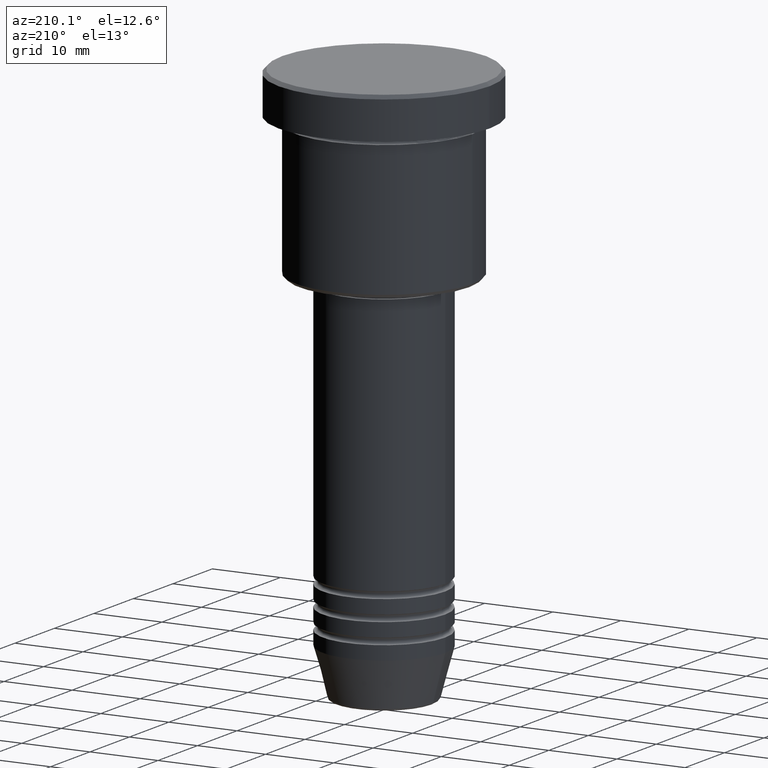
[diagram: clean part render]
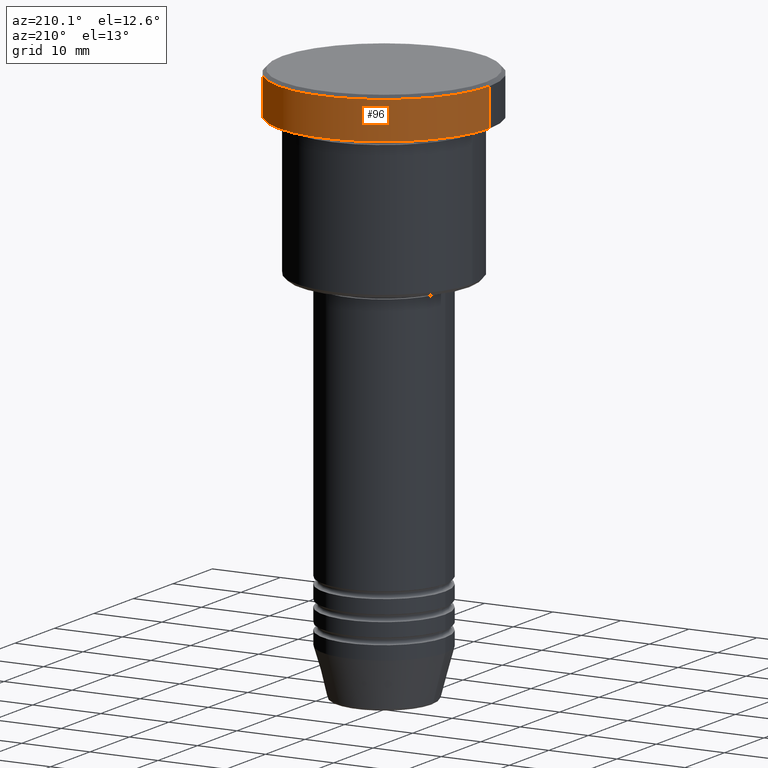
[diagram: same view with one face highlighted and labeled with its STEP entity id]
A machine part, auxiliary view. The second image highlights one B-rep face of the part: STEP entity #96.
In plain terms, the highlighted cylindrical surface (partial cylindrical patch) has radius 15.5 mm, axis along (-0, -0, 1).
Its self-contained STEP definition (entity closure, byte-faithful):
#4 = EDGE_CURVE ( 'NONE', #941, #603, #370, .T. ) ;
#20 = VECTOR ( 'NONE', #90, 1000.000000000000000 ) ;
#21 = DIRECTION ( 'NONE',  ( -0.000000000000000000, -0.000000000000000000, 1.000000000000000000 ) ) ;
#76 = CARTESIAN_POINT ( 'NONE',  ( 15.50000000000000000, 0.000000000000000000, -5.999999999999995559 ) ) ;
#79 = EDGE_CURVE ( 'NONE', #330, #225, #942, .T. ) ;
#90 = DIRECTION ( 'NONE',  ( -0.000000000000000000, -0.000000000000000000, 1.000000000000000000 ) ) ;
#96 = ADVANCED_FACE ( 'NONE', ( #939 ), #214, .T. ) ;
#123 = DIRECTION ( 'NONE',  ( -0.000000000000000000, -0.000000000000000000, 1.000000000000000000 ) ) ;
#144 = CARTESIAN_POINT ( 'NONE',  ( 15.50000000000000000, 0.000000000000000000, -0.4999999999999848455 ) ) ;
#163 = ORIENTED_EDGE ( 'NONE', *, *, #4, .T. ) ;
#199 = CARTESIAN_POINT ( 'NONE',  ( -15.50000000000000000, 1.898202538678397557E-15, 0.000000000000000000 ) ) ;
#207 = DIRECTION ( 'NONE',  ( 1.000000000000000000, 0.000000000000000000, 0.000000000000000000 ) ) ;
#214 = CYLINDRICAL_SURFACE ( 'NONE', #656, 15.50000000000000000 ) ;
#225 = VERTEX_POINT ( 'NONE', #1069 ) ;
#286 = CARTESIAN_POINT ( 'NONE',  ( -15.50000000000000000, 1.898202538678397557E-15, -0.4999999999999848455 ) ) ;
#330 = VERTEX_POINT ( 'NONE', #76 ) ;
#370 = CIRCLE ( 'NONE', #796, 15.50000000000000000 ) ;
#374 = VECTOR ( 'NONE', #21, 1000.000000000000000 ) ;
#385 = LINE ( 'NONE', #199, #374 ) ;
#398 = CARTESIAN_POINT ( 'NONE',  ( 0.000000000000000000, 0.000000000000000000, -0.4999999999999848455 ) ) ;
#408 = DIRECTION ( 'NONE',  ( 1.000000000000000000, 0.000000000000000000, 0.000000000000000000 ) ) ;
#427 = DIRECTION ( 'NONE',  ( 1.000000000000000000, 0.000000000000000000, 0.000000000000000000 ) ) ;
#461 = ORIENTED_EDGE ( 'NONE', *, *, #894, .T. ) ;
#476 = DIRECTION ( 'NONE',  ( -0.000000000000000000, -0.000000000000000000, 1.000000000000000000 ) ) ;
#569 = CARTESIAN_POINT ( 'NONE',  ( 0.000000000000000000, 0.000000000000000000, -5.999999999999995559 ) ) ;
#603 = VERTEX_POINT ( 'NONE', #144 ) ;
#656 = AXIS2_PLACEMENT_3D ( 'NONE', #948, #123, #427 ) ;
#709 = EDGE_LOOP ( 'NONE', ( #1140, #461, #163, #925 ) ) ;
#715 = EDGE_CURVE ( 'NONE', #330, #603, #1179, .T. ) ;
#735 = CARTESIAN_POINT ( 'NONE',  ( 15.50000000000000000, 0.000000000000000000, 0.000000000000000000 ) ) ;
#739 = AXIS2_PLACEMENT_3D ( 'NONE', #569, #476, #207 ) ;
#796 = AXIS2_PLACEMENT_3D ( 'NONE', #398, #837, #408 ) ;
#837 = DIRECTION ( 'NONE',  ( 0.000000000000000000, 0.000000000000000000, -1.000000000000000000 ) ) ;
#894 = EDGE_CURVE ( 'NONE', #225, #941, #385, .T. ) ;
#925 = ORIENTED_EDGE ( 'NONE', *, *, #715, .F. ) ;
#939 = FACE_OUTER_BOUND ( 'NONE', #709, .T. ) ;
#941 = VERTEX_POINT ( 'NONE', #286 ) ;
#942 = CIRCLE ( 'NONE', #739, 15.50000000000000000 ) ;
#948 = CARTESIAN_POINT ( 'NONE',  ( 0.000000000000000000, 0.000000000000000000, 0.000000000000000000 ) ) ;
#1069 = CARTESIAN_POINT ( 'NONE',  ( -15.50000000000000000, 1.898202538678397557E-15, -5.999999999999995559 ) ) ;
#1140 = ORIENTED_EDGE ( 'NONE', *, *, #79, .T. ) ;
#1179 = LINE ( 'NONE', #735, #20 ) ;